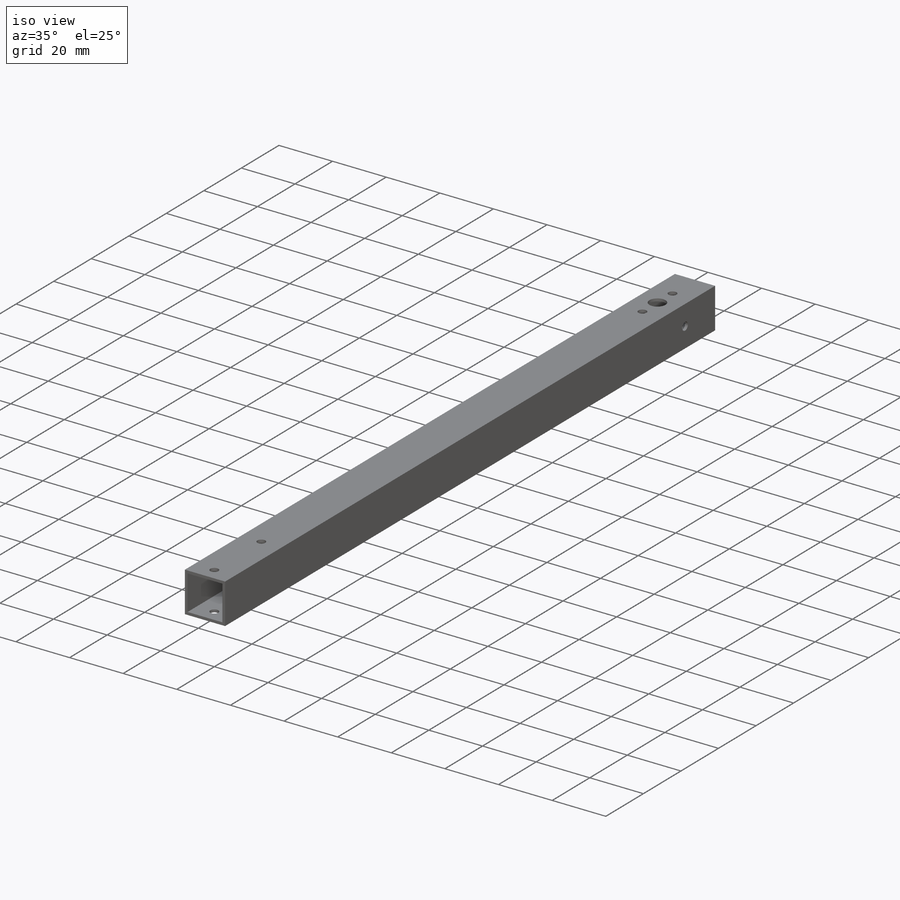
[diagram: iso view]
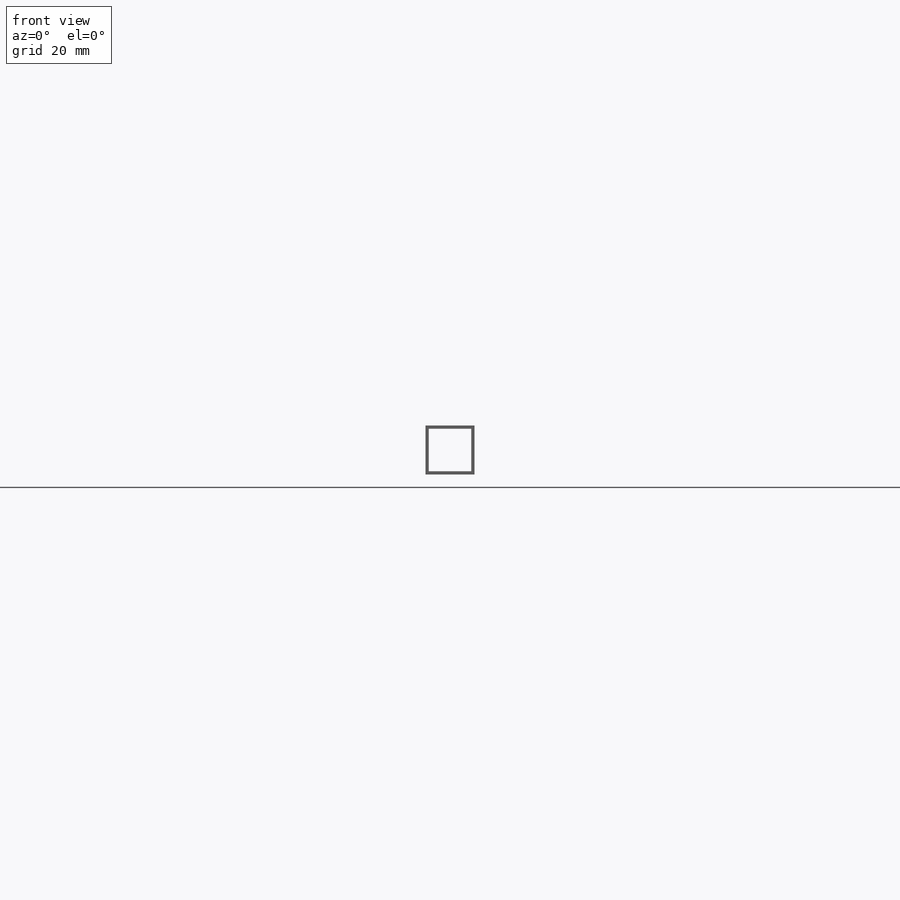
[diagram: front view]
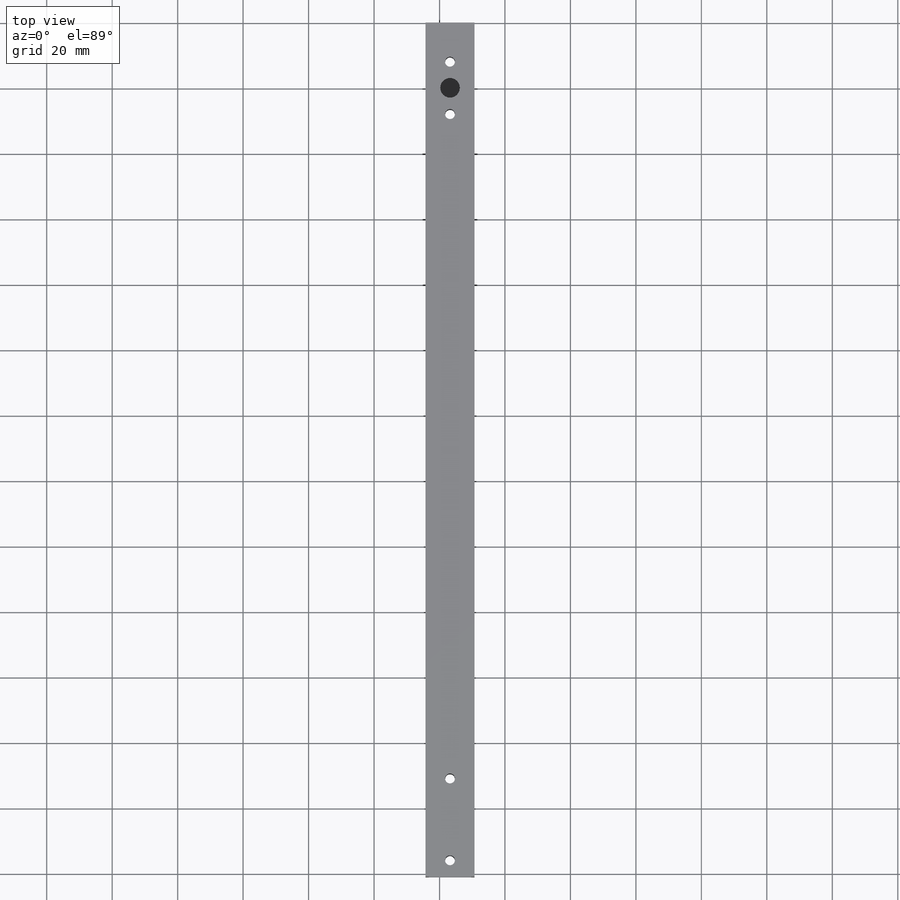
[diagram: top view]
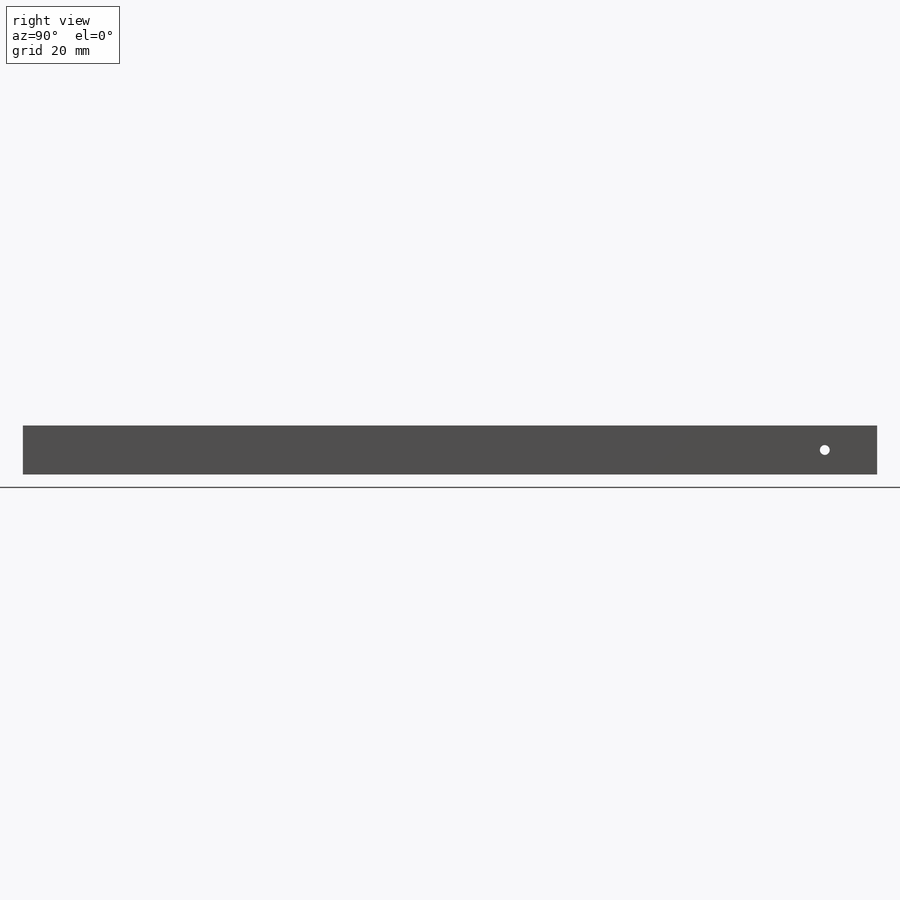
[diagram: right view]
SOLIDWORKS PART (.sldprt)
format: sldprt  version: not decoded by parser v0  size: 509,952 bytes
history: native  units: mm
features: sketch x10, hole x4, material x1, extrude x1, cut_extrude x1 (+11 scaffold rows collapsed)
feature tree (28):
  scaffold x11  (default folders/planes/origin — collapsed)
  material  "1060 Alloy"
  sketch  "Sketch1"  dims[D1=15.0mm D2=15.0mm]
  extrude  "Boss-Extrude1"  Depth=261mm
  sketch  "Sketch2"  dims[D1=13.0mm D2=1.0mm D3=1.0mm]
  cut_extrude  "Cut-Extrude1"  Depth=261mm
  hole  "Ø3.0 (3) Diameter Hole1"  Diameter=3mm Depth=15mm
  sketch  "Sketch4"  dims[D1=25.0mm D2=5.0mm D3=7.5mm D4=7.5mm]
  sketch  "Sketch3"  dims[hole-wizard template sketch: 61 standard entries collapsed; hole parameters above]
  hole  "Ø3.0 (3) Diameter Hole2"  Diameter=3mm Depth=15mm
  sketch  "Sketch6"  dims[D1=12.0mm D2=16.0mm D3=7.5mm D4=7.5mm]
  sketch  "Sketch5"  dims[hole-wizard template sketch: 61 standard entries collapsed; hole parameters above]
  hole  "Ø6.0 (6) Diameter Hole1"  Diameter=6mm Depth=10mm
  sketch  "Sketch8"  dims[c1.D2=3.0mm c1.D1=7.5mm c2.D2=8.0mm c2.D3=8.0mm]
  sketch  "Sketch7"  dims[hole-wizard template sketch: 50 standard entries collapsed; hole parameters above]
  hole  "Ø3.0 (3) Diameter Hole3"  Diameter=3mm Depth=15mm
  sketch  "Sketch10"  dims[D1=7.5mm D2=16.0mm]
  sketch  "Sketch11"  dims[hole-wizard template sketch: 61 standard entries collapsed; hole parameters above]
decode coverage: 16 of 16 modeling features carry decoded parameters
note: ~ marks probable driven/reference dimensions
summary: Diameter pulled from absorbed wizard sketch
note: suppression state not decoded; provenance and decode notes live in map.json
